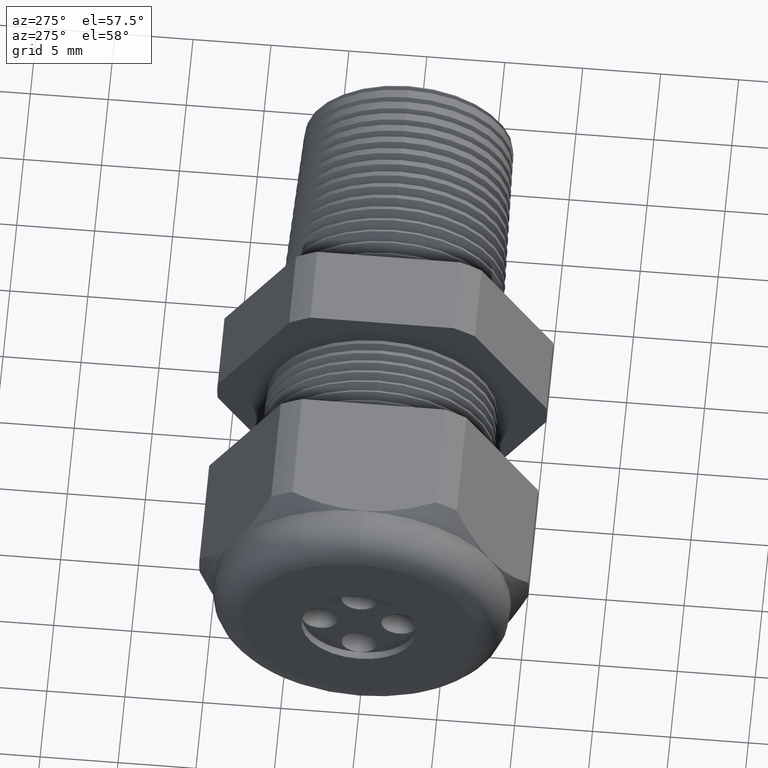
[diagram: clean part render]
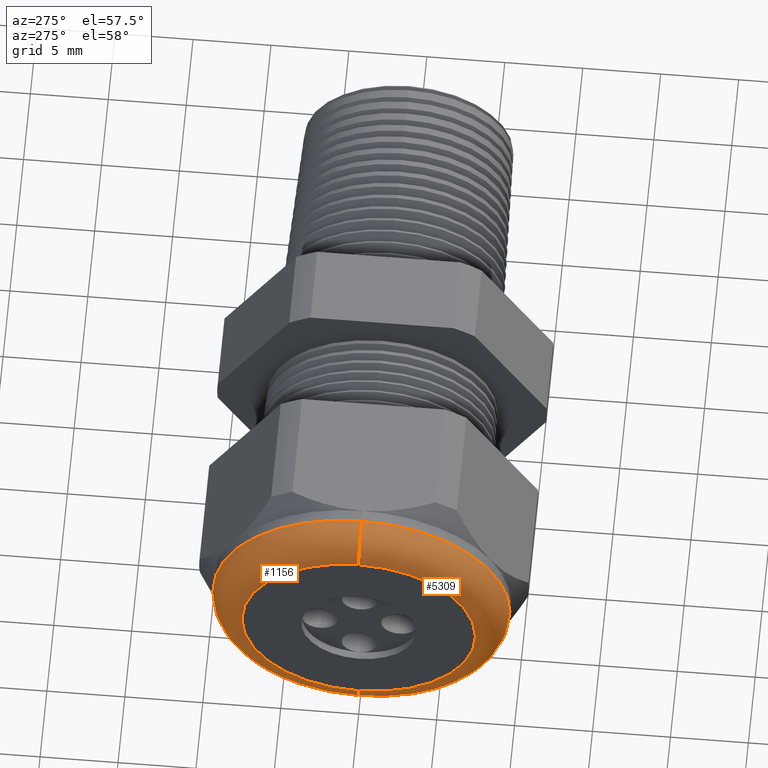
[diagram: same view with one multi-face feature highlighted, each face labeled with its STEP entity id]
A machine part, auxiliary view. The highlighted faces form ONE feature: a constant-radius fillet chain: 2 tangent blend faces with common blend radius 2.032 mm. The faces share edges in the B-rep.
Their STEP definitions:
[1] entity #1156 (Torus):
#1138 = EDGE_CURVE ( 'NONE', #1166, #1164, #3735, .T. ) ;
#1139 = ORIENTED_EDGE ( 'NONE', *, *, #1140, .F. ) ;
#1140 = EDGE_CURVE ( 'NONE', #1161, #1166, #3726, .T. ) ;
#1156 = ADVANCED_FACE ( 'NONE', ( #3756 ), #3754, .T. ) ;
#1157 = EDGE_LOOP ( 'NONE', ( #1158, #1162, #1165, #1139 ) ) ;
#1158 = ORIENTED_EDGE ( 'NONE', *, *, #1159, .F. ) ;
#1159 = EDGE_CURVE ( 'NONE', #1160, #1161, #3750, .T. ) ;
#1160 = VERTEX_POINT ( 'NONE', #3745 ) ;
#1161 = VERTEX_POINT ( 'NONE', #3744 ) ;
#1162 = ORIENTED_EDGE ( 'NONE', *, *, #1163, .T. ) ;
#1163 = EDGE_CURVE ( 'NONE', #1160, #1164, #3805, .T. ) ;
#1164 = VERTEX_POINT ( 'NONE', #3800 ) ;
#1165 = ORIENTED_EDGE ( 'NONE', *, *, #1138, .F. ) ;
#1166 = VERTEX_POINT ( 'NONE', #3799 ) ;
#3722 = DIRECTION ( 'NONE',  ( 0.0000000000000000000, 0.0000000000000000000, -1.000000000000000000 ) ) ;
#3723 = DIRECTION ( 'NONE',  ( 0.0000000000000000000, -1.000000000000000000, 0.0000000000000000000 ) ) ;
#3724 = CARTESIAN_POINT ( 'NONE',  ( -1.100000000000000100, 0.0000000000000000000, 0.2950000000000001000 ) ) ;
#3725 = AXIS2_PLACEMENT_3D ( 'NONE', #3724, #3723, #3722 ) ;
#3726 = CIRCLE ( 'NONE', #3725, 0.08000000000000000200 ) ;
#3727 = DIRECTION ( 'NONE',  ( 0.0000000000000000000, 0.0000000000000000000, 1.000000000000000000 ) ) ;
#3728 = DIRECTION ( 'NONE',  ( -1.000000000000000000, 0.0000000000000000000, 0.0000000000000000000 ) ) ;
#3729 = CARTESIAN_POINT ( 'NONE',  ( -1.179999999999999900, 0.0000000000000000000, 0.0000000000000000000 ) ) ;
#3730 = AXIS2_PLACEMENT_3D ( 'NONE', #3729, #3728, #3727 ) ;
#3735 = CIRCLE ( 'NONE', #3730, 0.2950000000000001000 ) ;
#3744 = CARTESIAN_POINT ( 'NONE',  ( -1.100000000000000100, 4.592425496802576100E-017, 0.3750000000000001100 ) ) ;
#3745 = CARTESIAN_POINT ( 'NONE',  ( -1.100000000000000100, 0.0000000000000000000, -0.3750000000000001100 ) ) ;
#3746 = DIRECTION ( 'NONE',  ( 0.0000000000000000000, 0.0000000000000000000, 1.000000000000000000 ) ) ;
#3747 = DIRECTION ( 'NONE',  ( 1.000000000000000000, 0.0000000000000000000, 0.0000000000000000000 ) ) ;
#3748 = CARTESIAN_POINT ( 'NONE',  ( -1.100000000000000100, 0.0000000000000000000, 0.0000000000000000000 ) ) ;
#3749 = AXIS2_PLACEMENT_3D ( 'NONE', #3748, #3747, #3746 ) ;
#3750 = CIRCLE ( 'NONE', #3749, 0.3750000000000001100 ) ;
#3751 = DIRECTION ( 'NONE',  ( 0.0000000000000000000, 0.0000000000000000000, 1.000000000000000000 ) ) ;
#3752 = DIRECTION ( 'NONE',  ( -1.000000000000000000, 0.0000000000000000000, 0.0000000000000000000 ) ) ;
#3753 = AXIS2_PLACEMENT_3D ( 'NONE', #3755, #3752, #3751 ) ;
#3754 = TOROIDAL_SURFACE ( 'NONE', #3753, 0.2950000000000001000, 0.08000000000000000200 ) ;
#3755 = CARTESIAN_POINT ( 'NONE',  ( -1.100000000000000100, 0.0000000000000000000, 0.0000000000000000000 ) ) ;
#3756 = FACE_OUTER_BOUND ( 'NONE', #1157, .T. ) ;
#3799 = CARTESIAN_POINT ( 'NONE',  ( -1.179999999999999900, 0.0000000000000000000, 0.2950000000000001000 ) ) ;
#3800 = CARTESIAN_POINT ( 'NONE',  ( -1.179999999999999900, 4.102566777143634000E-017, -0.2950000000000001000 ) ) ;
#3801 = DIRECTION ( 'NONE',  ( 0.0000000000000000000, -1.224646799147353500E-016, 1.000000000000000000 ) ) ;
#3802 = DIRECTION ( 'NONE',  ( 0.0000000000000000000, 1.000000000000000000, 1.224646799147353200E-016 ) ) ;
#3803 = CARTESIAN_POINT ( 'NONE',  ( -1.100000000000000100, 3.612708057484693200E-017, -0.2950000000000001000 ) ) ;
#3804 = AXIS2_PLACEMENT_3D ( 'NONE', #3803, #3802, #3801 ) ;
#3805 = CIRCLE ( 'NONE', #3804, 0.08000000000000000200 ) ;
[2] entity #5309 (Torus):
#217 = EDGE_CURVE ( 'NONE', #1164, #1166, #2012, .T. ) ;
#229 = EDGE_CURVE ( 'NONE', #1161, #1160, #2051, .T. ) ;
#1140 = EDGE_CURVE ( 'NONE', #1161, #1166, #3726, .T. ) ;
#1160 = VERTEX_POINT ( 'NONE', #3745 ) ;
#1161 = VERTEX_POINT ( 'NONE', #3744 ) ;
#1163 = EDGE_CURVE ( 'NONE', #1160, #1164, #3805, .T. ) ;
#1164 = VERTEX_POINT ( 'NONE', #3800 ) ;
#1166 = VERTEX_POINT ( 'NONE', #3799 ) ;
#2008 = DIRECTION ( 'NONE',  ( 0.0000000000000000000, 0.0000000000000000000, 1.000000000000000000 ) ) ;
#2009 = DIRECTION ( 'NONE',  ( -1.000000000000000000, 0.0000000000000000000, 0.0000000000000000000 ) ) ;
#2010 = CARTESIAN_POINT ( 'NONE',  ( -1.179999999999999900, 0.0000000000000000000, 0.0000000000000000000 ) ) ;
#2011 = AXIS2_PLACEMENT_3D ( 'NONE', #2010, #2009, #2008 ) ;
#2012 = CIRCLE ( 'NONE', #2011, 0.2950000000000001000 ) ;
#2043 = DIRECTION ( 'NONE',  ( 0.0000000000000000000, 0.0000000000000000000, 1.000000000000000000 ) ) ;
#2044 = DIRECTION ( 'NONE',  ( 1.000000000000000000, 0.0000000000000000000, 0.0000000000000000000 ) ) ;
#2045 = CARTESIAN_POINT ( 'NONE',  ( -1.100000000000000100, 0.0000000000000000000, 0.0000000000000000000 ) ) ;
#2046 = AXIS2_PLACEMENT_3D ( 'NONE', #2045, #2044, #2043 ) ;
#2051 = CIRCLE ( 'NONE', #2046, 0.3750000000000001100 ) ;
#3722 = DIRECTION ( 'NONE',  ( 0.0000000000000000000, 0.0000000000000000000, -1.000000000000000000 ) ) ;
#3723 = DIRECTION ( 'NONE',  ( 0.0000000000000000000, -1.000000000000000000, 0.0000000000000000000 ) ) ;
#3724 = CARTESIAN_POINT ( 'NONE',  ( -1.100000000000000100, 0.0000000000000000000, 0.2950000000000001000 ) ) ;
#3725 = AXIS2_PLACEMENT_3D ( 'NONE', #3724, #3723, #3722 ) ;
#3726 = CIRCLE ( 'NONE', #3725, 0.08000000000000000200 ) ;
#3744 = CARTESIAN_POINT ( 'NONE',  ( -1.100000000000000100, 4.592425496802576100E-017, 0.3750000000000001100 ) ) ;
#3745 = CARTESIAN_POINT ( 'NONE',  ( -1.100000000000000100, 0.0000000000000000000, -0.3750000000000001100 ) ) ;
#3799 = CARTESIAN_POINT ( 'NONE',  ( -1.179999999999999900, 0.0000000000000000000, 0.2950000000000001000 ) ) ;
#3800 = CARTESIAN_POINT ( 'NONE',  ( -1.179999999999999900, 4.102566777143634000E-017, -0.2950000000000001000 ) ) ;
#3801 = DIRECTION ( 'NONE',  ( 0.0000000000000000000, -1.224646799147353500E-016, 1.000000000000000000 ) ) ;
#3802 = DIRECTION ( 'NONE',  ( 0.0000000000000000000, 1.000000000000000000, 1.224646799147353200E-016 ) ) ;
#3803 = CARTESIAN_POINT ( 'NONE',  ( -1.100000000000000100, 3.612708057484693200E-017, -0.2950000000000001000 ) ) ;
#3804 = AXIS2_PLACEMENT_3D ( 'NONE', #3803, #3802, #3801 ) ;
#3805 = CIRCLE ( 'NONE', #3804, 0.08000000000000000200 ) ;
#4715 = DIRECTION ( 'NONE',  ( 0.0000000000000000000, 0.0000000000000000000, 1.000000000000000000 ) ) ;
#4716 = DIRECTION ( 'NONE',  ( -1.000000000000000000, 0.0000000000000000000, 0.0000000000000000000 ) ) ;
#4717 = AXIS2_PLACEMENT_3D ( 'NONE', #4723, #4716, #4715 ) ;
#4718 = TOROIDAL_SURFACE ( 'NONE', #4717, 0.2950000000000001000, 0.08000000000000000200 ) ;
#4719 = FACE_OUTER_BOUND ( 'NONE', #5285, .T. ) ;
#4723 = CARTESIAN_POINT ( 'NONE',  ( -1.100000000000000100, 0.0000000000000000000, 0.0000000000000000000 ) ) ;
#5273 = ORIENTED_EDGE ( 'NONE', *, *, #217, .F. ) ;
#5281 = ORIENTED_EDGE ( 'NONE', *, *, #229, .F. ) ;
#5282 = ORIENTED_EDGE ( 'NONE', *, *, #1163, .F. ) ;
#5283 = ORIENTED_EDGE ( 'NONE', *, *, #1140, .T. ) ;
#5285 = EDGE_LOOP ( 'NONE', ( #5282, #5281, #5283, #5273 ) ) ;
#5309 = ADVANCED_FACE ( 'NONE', ( #4719 ), #4718, .T. ) ;